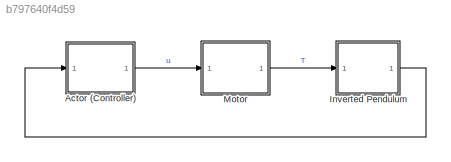
MODEL slx_b797640f4d59
KIND model
CONFIG AbsTol = auto
CONFIG FixedStep = auto
CONFIG MaxStep = auto
CONFIG MinStep = auto
CONFIG RelTol = 1e-3
CONFIG SampleTimeConstraint = Unconstrained
CONFIG Solver = VariableStepAuto
CONFIG SolverMode = Auto
CONFIG SolverName = VariableStepAuto
CONFIG StartTime = 0.0
CONFIG StopTime = 10.0
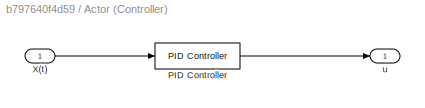
BLOCK [SubSystem] Actor (Controller)
  Ports = [1, 1]
  RequestExecContextInheritance = off
  Variant = off
BLOCK [Reference] Actor (Controller)/PID Controller  REF=simulink/Continuous/PID Controller
  Ports = [1, 1]
  SourceBlock = simulink/Continuous/PID Controller
  SourceType = PID 1dof
BLOCK [Inport] Actor (Controller)/X(t)
  IconDisplay = Port number
BLOCK [Outport] Actor (Controller)/u
  IconDisplay = Port number
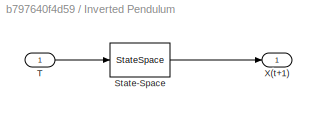
BLOCK [SubSystem] Inverted Pendulum
  Ports = [1, 1]
  RequestExecContextInheritance = off
  Variant = off
BLOCK [StateSpace] Inverted Pendulum/State-Space
  Ports = [1, 1]
  X0 = 0
BLOCK [Inport] Inverted Pendulum/T
  IconDisplay = Port number
BLOCK [Outport] Inverted Pendulum/X(t+1)
  IconDisplay = Port number
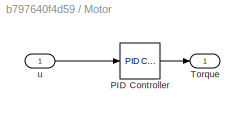
BLOCK [SubSystem] Motor
  Ports = [1, 1]
  RequestExecContextInheritance = off
  Variant = off
BLOCK [Reference] Motor/PID Controller  REF=simulink/Continuous/PID Controller
  Ports = [1, 1]
  SourceBlock = simulink/Continuous/PID Controller
  SourceType = PID 1dof
BLOCK [Outport] Motor/Torque
  IconDisplay = Port number
BLOCK [Inport] Motor/u
  IconDisplay = Port number
LINE Actor (Controller)/PID Controller:1 -> Actor (Controller)/u:1
LINE Actor (Controller)/X(t):1 -> Actor (Controller)/PID Controller:1
LINE Actor (Controller):1 -> Motor:1
LINE Inverted Pendulum/State-Space:1 -> Inverted Pendulum/X(t+1):1
LINE Inverted Pendulum/T:1 -> Inverted Pendulum/State-Space:1
LINE Inverted Pendulum:1 -> Actor (Controller):1
LINE Motor/PID Controller:1 -> Motor/Torque:1
LINE Motor/u:1 -> Motor/PID Controller:1
LINE Motor:1 -> Inverted Pendulum:1
